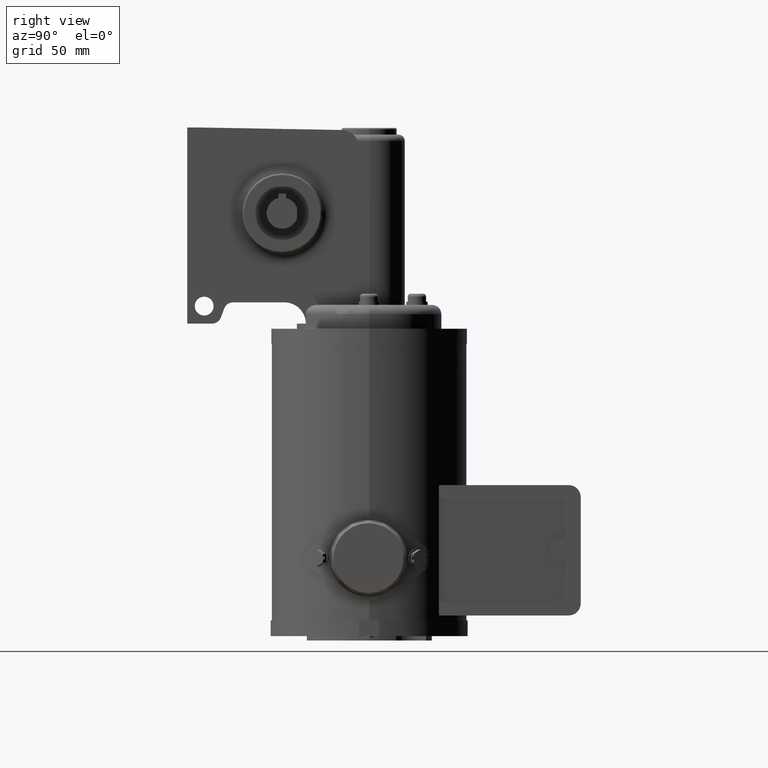
[diagram: clean part render]
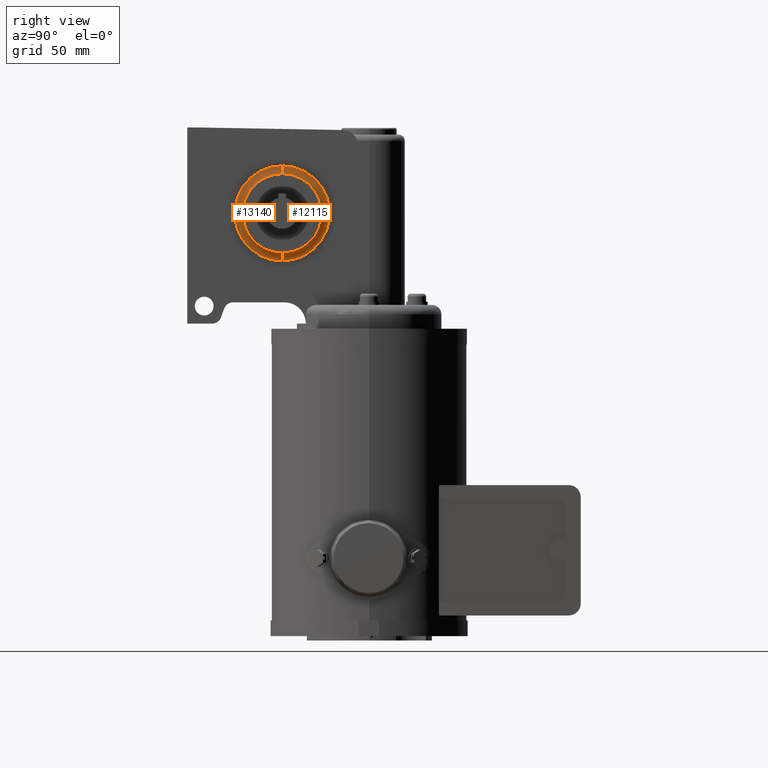
[diagram: same view with one multi-face feature highlighted, each face labeled with its STEP entity id]
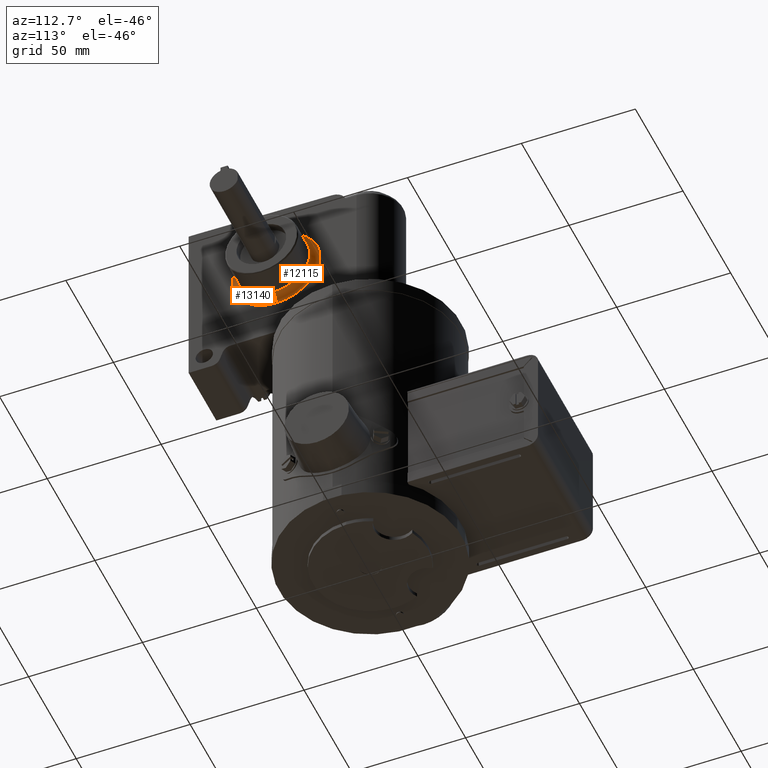
[diagram: same view with one multi-face feature highlighted, each face labeled with its STEP entity id]
A machine part, right view. The highlighted faces form ONE feature: a constant-radius fillet chain: 2 tangent blend faces with common blend radius 3.175 mm. The faces share edges in the B-rep.
A second angle (auxiliary view) of the same feature is appended — it is thin or edge-on in the first view.
Their STEP definitions:
[1] entity #12115 (Torus):
#598 = DIRECTION ( 'NONE',  ( 0.0000000000000000000, 0.0000000000000000000, 1.000000000000000000 ) ) ;
#800 = VERTEX_POINT ( 'NONE', #14393 ) ;
#804 = AXIS2_PLACEMENT_3D ( 'NONE', #9692, #24496, #11856 ) ;
#1117 = CARTESIAN_POINT ( 'NONE',  ( 0.6966000000000000000, -1.385999999999999900, 0.3056010000000004000 ) ) ;
#1155 = AXIS2_PLACEMENT_3D ( 'NONE', #25970, #13322, #598 ) ;
#1293 = DIRECTION ( 'NONE',  ( 0.0000000000000000000, 0.0000000000000000000, -1.000000000000000000 ) ) ;
#2713 = EDGE_CURVE ( 'NONE', #25634, #800, #24394, .T. ) ;
#2837 = FACE_OUTER_BOUND ( 'NONE', #17840, .T. ) ;
#3241 = DIRECTION ( 'NONE',  ( 0.0000000000000000000, 0.0000000000000000000, -1.000000000000000000 ) ) ;
#3405 = ORIENTED_EDGE ( 'NONE', *, *, #6222, .F. ) ;
#3500 = CARTESIAN_POINT ( 'NONE',  ( 0.5716000000000001100, -1.385999999999999900, 0.3056010000000004000 ) ) ;
#5651 = DIRECTION ( 'NONE',  ( 0.0000000000000000000, 0.0000000000000000000, -1.000000000000000000 ) ) ;
#5948 = CIRCLE ( 'NONE', #25368, 0.7581000000000000000 ) ;
#6222 = EDGE_CURVE ( 'NONE', #7257, #800, #5948, .T. ) ;
#7257 = VERTEX_POINT ( 'NONE', #22839 ) ;
#7708 = CARTESIAN_POINT ( 'NONE',  ( 0.6966000000000000000, -1.385999999999999900, 0.9387010000000003400 ) ) ;
#8500 = TOROIDAL_SURFACE ( 'NONE', #18136, 0.7581000000000000000, 0.1250000000000000000 ) ;
#9692 = CARTESIAN_POINT ( 'NONE',  ( 0.6966000000000000000, -1.385999999999999900, -0.4524989999999996500 ) ) ;
#11235 = CIRCLE ( 'NONE', #22544, 0.6331000000000000000 ) ;
#11856 = DIRECTION ( 'NONE',  ( 0.0000000000000000000, 0.0000000000000000000, -1.000000000000000000 ) ) ;
#12115 = ADVANCED_FACE ( 'NONE', ( #2837 ), #8500, .F. ) ;
#13322 = DIRECTION ( 'NONE',  ( -0.0000000000000000000, 1.000000000000000000, -1.224646799147353200E-016 ) ) ;
#13911 = VERTEX_POINT ( 'NONE', #7708 ) ;
#14393 = CARTESIAN_POINT ( 'NONE',  ( 0.5716000000000000000, -1.385999999999999900, -0.4524989999999996500 ) ) ;
#15991 = DIRECTION ( 'NONE',  ( 1.000000000000000000, 0.0000000000000000000, -0.0000000000000000000 ) ) ;
#17364 = ORIENTED_EDGE ( 'NONE', *, *, #23654, .F. ) ;
#17840 = EDGE_LOOP ( 'NONE', ( #17364, #19655, #21591, #3405 ) ) ;
#18136 = AXIS2_PLACEMENT_3D ( 'NONE', #24509, #20285, #1293 ) ;
#18374 = DIRECTION ( 'NONE',  ( -1.000000000000000000, -0.0000000000000000000, 0.0000000000000000000 ) ) ;
#19314 = CARTESIAN_POINT ( 'NONE',  ( 0.6966000000000000000, -1.385999999999999900, -0.3274989999999996000 ) ) ;
#19655 = ORIENTED_EDGE ( 'NONE', *, *, #21052, .F. ) ;
#20285 = DIRECTION ( 'NONE',  ( 1.000000000000000000, 0.0000000000000000000, -0.0000000000000000000 ) ) ;
#21052 = EDGE_CURVE ( 'NONE', #25634, #13911, #11235, .T. ) ;
#21591 = ORIENTED_EDGE ( 'NONE', *, *, #2713, .T. ) ;
#22544 = AXIS2_PLACEMENT_3D ( 'NONE', #1117, #15991, #3241 ) ;
#22839 = CARTESIAN_POINT ( 'NONE',  ( 0.5716000000000000000, -1.385999999999999900, 1.063701000000000500 ) ) ;
#23654 = EDGE_CURVE ( 'NONE', #13911, #7257, #24102, .T. ) ;
#24102 = CIRCLE ( 'NONE', #1155, 0.1250000000000000300 ) ;
#24394 = CIRCLE ( 'NONE', #804, 0.1250000000000000300 ) ;
#24496 = DIRECTION ( 'NONE',  ( 0.0000000000000000000, -1.000000000000000000, 0.0000000000000000000 ) ) ;
#24509 = CARTESIAN_POINT ( 'NONE',  ( 0.6966000000000000000, -1.385999999999999900, 0.3056010000000004000 ) ) ;
#25368 = AXIS2_PLACEMENT_3D ( 'NONE', #3500, #18374, #5651 ) ;
#25634 = VERTEX_POINT ( 'NONE', #19314 ) ;
#25970 = CARTESIAN_POINT ( 'NONE',  ( 0.6966000000000000000, -1.385999999999999900, 1.063701000000000500 ) ) ;
[2] entity #13140 (Torus):
#598 = DIRECTION ( 'NONE',  ( 0.0000000000000000000, 0.0000000000000000000, 1.000000000000000000 ) ) ;
#800 = VERTEX_POINT ( 'NONE', #14393 ) ;
#804 = AXIS2_PLACEMENT_3D ( 'NONE', #9692, #24496, #11856 ) ;
#1155 = AXIS2_PLACEMENT_3D ( 'NONE', #25970, #13322, #598 ) ;
#1425 = DIRECTION ( 'NONE',  ( 0.0000000000000000000, 0.0000000000000000000, -1.000000000000000000 ) ) ;
#2713 = EDGE_CURVE ( 'NONE', #25634, #800, #24394, .T. ) ;
#3517 = AXIS2_PLACEMENT_3D ( 'NONE', #26789, #14122, #1425 ) ;
#3613 = EDGE_LOOP ( 'NONE', ( #24650, #19417, #7211, #15199 ) ) ;
#5896 = CIRCLE ( 'NONE', #3517, 0.6331000000000000000 ) ;
#6083 = TOROIDAL_SURFACE ( 'NONE', #14059, 0.7581000000000000000, 0.1250000000000000000 ) ;
#7211 = ORIENTED_EDGE ( 'NONE', *, *, #16794, .F. ) ;
#7257 = VERTEX_POINT ( 'NONE', #22839 ) ;
#7708 = CARTESIAN_POINT ( 'NONE',  ( 0.6966000000000000000, -1.385999999999999900, 0.9387010000000003400 ) ) ;
#9692 = CARTESIAN_POINT ( 'NONE',  ( 0.6966000000000000000, -1.385999999999999900, -0.4524989999999996500 ) ) ;
#10001 = AXIS2_PLACEMENT_3D ( 'NONE', #10233, #25005, #12376 ) ;
#10233 = CARTESIAN_POINT ( 'NONE',  ( 0.5716000000000001100, -1.385999999999999900, 0.3056010000000004000 ) ) ;
#10281 = CIRCLE ( 'NONE', #10001, 0.7581000000000000000 ) ;
#10335 = CARTESIAN_POINT ( 'NONE',  ( 0.6966000000000000000, -1.385999999999999900, 0.3056010000000004000 ) ) ;
#11571 = EDGE_CURVE ( 'NONE', #13911, #25634, #5896, .T. ) ;
#11856 = DIRECTION ( 'NONE',  ( 0.0000000000000000000, 0.0000000000000000000, -1.000000000000000000 ) ) ;
#12376 = DIRECTION ( 'NONE',  ( 0.0000000000000000000, 0.0000000000000000000, -1.000000000000000000 ) ) ;
#13140 = ADVANCED_FACE ( 'NONE', ( #17385 ), #6083, .F. ) ;
#13322 = DIRECTION ( 'NONE',  ( -0.0000000000000000000, 1.000000000000000000, -1.224646799147353200E-016 ) ) ;
#13911 = VERTEX_POINT ( 'NONE', #7708 ) ;
#14059 = AXIS2_PLACEMENT_3D ( 'NONE', #10335, #18773, #25095 ) ;
#14122 = DIRECTION ( 'NONE',  ( 1.000000000000000000, 0.0000000000000000000, -0.0000000000000000000 ) ) ;
#14393 = CARTESIAN_POINT ( 'NONE',  ( 0.5716000000000000000, -1.385999999999999900, -0.4524989999999996500 ) ) ;
#15199 = ORIENTED_EDGE ( 'NONE', *, *, #2713, .F. ) ;
#16794 = EDGE_CURVE ( 'NONE', #800, #7257, #10281, .T. ) ;
#17385 = FACE_OUTER_BOUND ( 'NONE', #3613, .T. ) ;
#18773 = DIRECTION ( 'NONE',  ( 1.000000000000000000, 0.0000000000000000000, -0.0000000000000000000 ) ) ;
#19314 = CARTESIAN_POINT ( 'NONE',  ( 0.6966000000000000000, -1.385999999999999900, -0.3274989999999996000 ) ) ;
#19417 = ORIENTED_EDGE ( 'NONE', *, *, #23654, .T. ) ;
#22839 = CARTESIAN_POINT ( 'NONE',  ( 0.5716000000000000000, -1.385999999999999900, 1.063701000000000500 ) ) ;
#23654 = EDGE_CURVE ( 'NONE', #13911, #7257, #24102, .T. ) ;
#24102 = CIRCLE ( 'NONE', #1155, 0.1250000000000000300 ) ;
#24394 = CIRCLE ( 'NONE', #804, 0.1250000000000000300 ) ;
#24496 = DIRECTION ( 'NONE',  ( 0.0000000000000000000, -1.000000000000000000, 0.0000000000000000000 ) ) ;
#24650 = ORIENTED_EDGE ( 'NONE', *, *, #11571, .F. ) ;
#25005 = DIRECTION ( 'NONE',  ( -1.000000000000000000, -0.0000000000000000000, 0.0000000000000000000 ) ) ;
#25095 = DIRECTION ( 'NONE',  ( 0.0000000000000000000, 0.0000000000000000000, -1.000000000000000000 ) ) ;
#25634 = VERTEX_POINT ( 'NONE', #19314 ) ;
#25970 = CARTESIAN_POINT ( 'NONE',  ( 0.6966000000000000000, -1.385999999999999900, 1.063701000000000500 ) ) ;
#26789 = CARTESIAN_POINT ( 'NONE',  ( 0.6966000000000000000, -1.385999999999999900, 0.3056010000000004000 ) ) ;